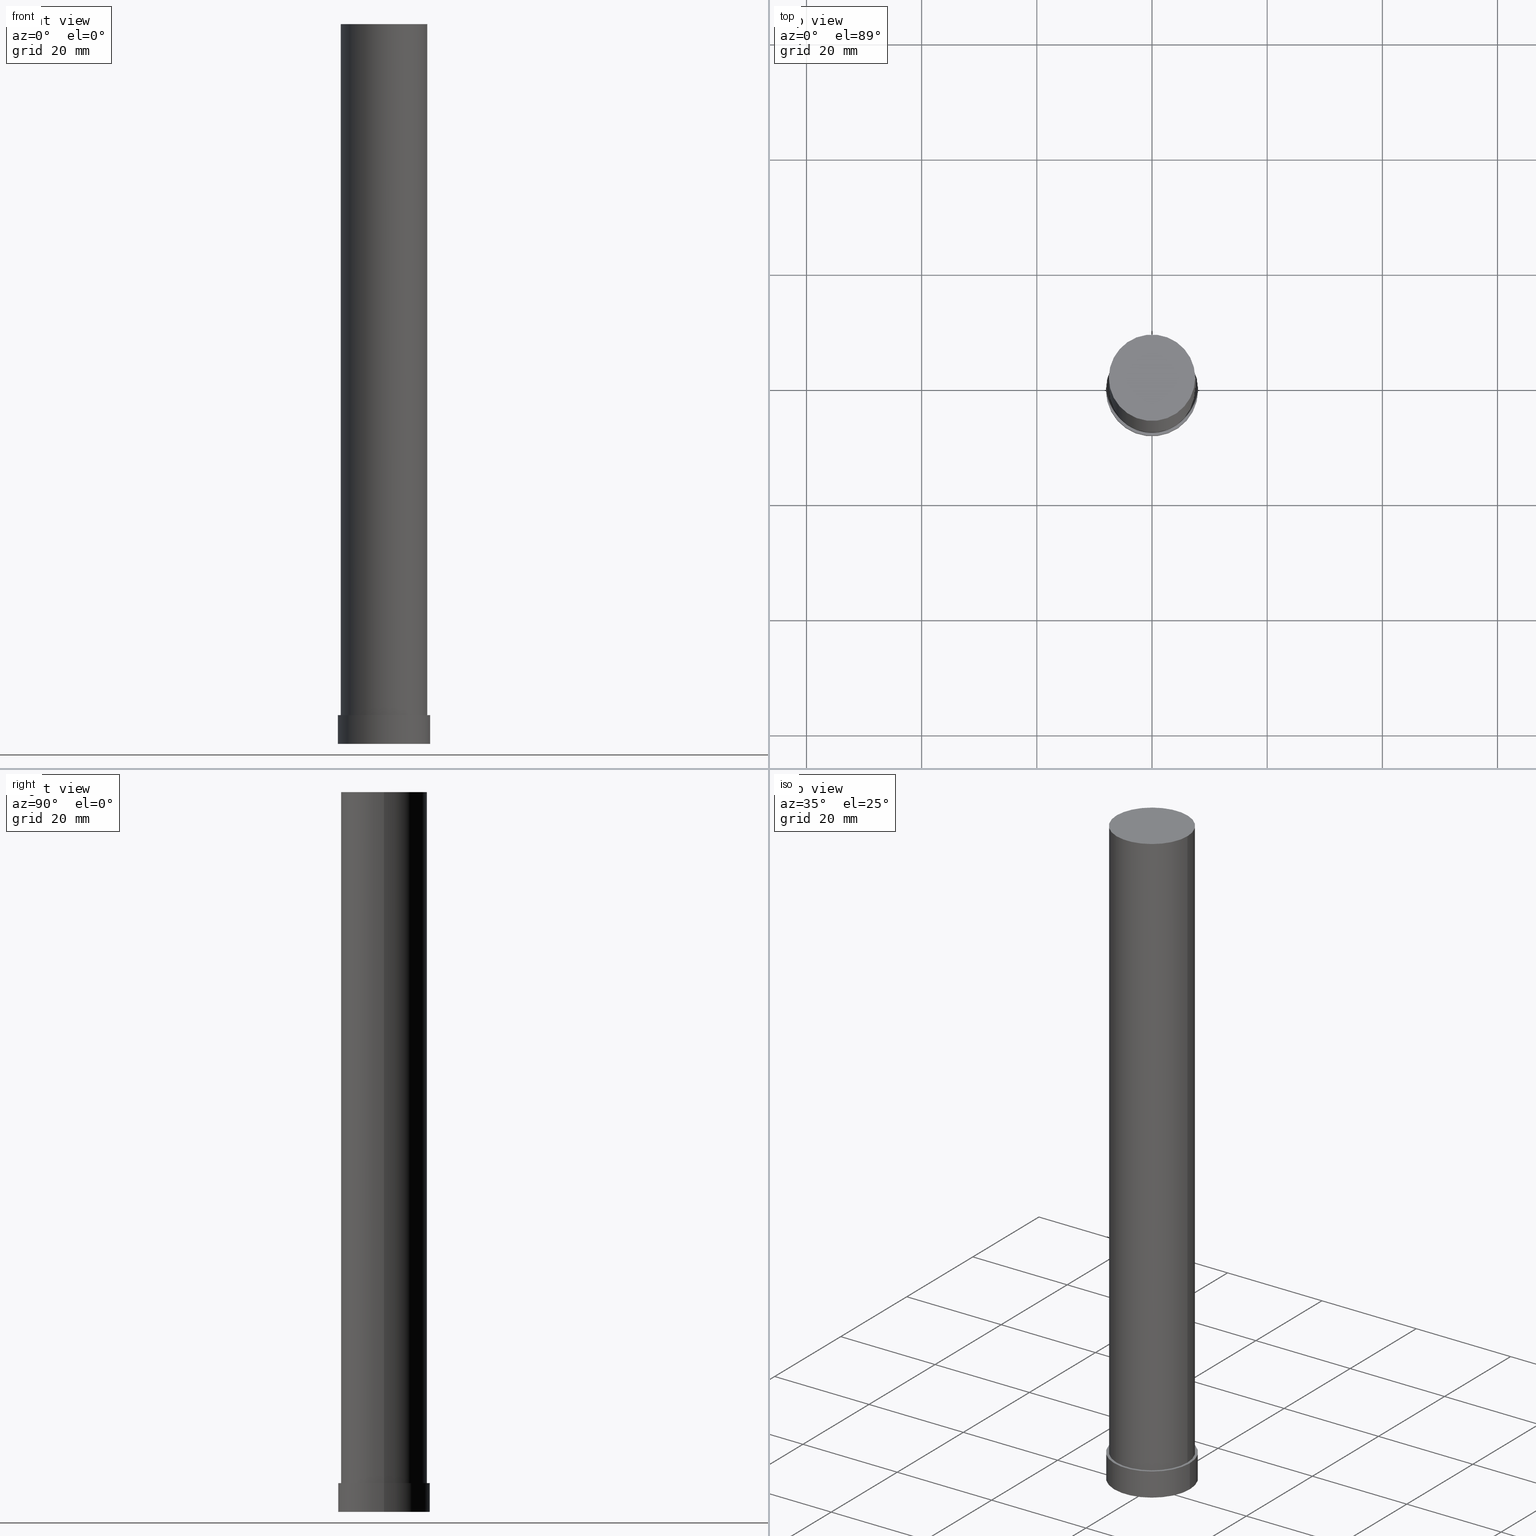
[diagram: canonical four-view strip — front | top / right | iso, engineering-drawing reading convention]
A machine part, canonical four-view strip (front | top / right | iso — engineering-drawing reading convention). The complete STEP part file that produces these views, byte-faithful:
ISO-10303-21;
HEADER;
FILE_DESCRIPTION (( 'STEP AP203' ),
    '1' );
FILE_NAME ('7818.STEP',
    '2023-10-18T15:07:00',
    ( '' ),
    ( '' ),
    'SwSTEP 2.0',
    'SolidWorks 2019',
    '' );
FILE_SCHEMA (( 'CONFIG_CONTROL_DESIGN' ));
ENDSEC;

DATA;
#1 = COORDINATED_UNIVERSAL_TIME_OFFSET ( 1, 0, .AHEAD. ) ;
#2 = CYLINDRICAL_SURFACE ( 'NONE', #224, 8.000000000000000000 ) ;
#3 = CARTESIAN_POINT ( 'NONE',  ( -8.000000000000000000, 0.000000000000000000, 5.000000000000000000 ) ) ;
#4 = CYLINDRICAL_SURFACE ( 'NONE', #17, 8.000000000000000000 ) ;
#5 = ORIENTED_EDGE ( 'NONE', *, *, #146, .T. ) ;
#6 = CIRCLE ( 'NONE', #92, 8.000000000000000000 ) ;
#7 = EDGE_CURVE ( 'NONE', #100, #204, #225, .T. ) ;
#8 = ORIENTED_EDGE ( 'NONE', *, *, #167, .F. ) ;
#9 = PLANE ( 'NONE',  #251 ) ;
#10 = CARTESIAN_POINT ( 'NONE',  ( 0.000000000000000000, 0.000000000000000000, 125.0000000000000000 ) ) ;
#11 = AXIS2_PLACEMENT_3D ( 'NONE', #174, #132, #13 ) ;
#12 = APPROVAL ( #134, 'NEUR�EN�' ) ;
#13 = DIRECTION ( 'NONE',  ( 1.000000000000000000, 0.000000000000000000, 0.000000000000000000 ) ) ;
#14 = DATE_AND_TIME ( #198, #158 ) ;
#15 = MECHANICAL_CONTEXT ( 'NONE', #27, 'mechanical' ) ;
#16 = DIRECTION ( 'NONE',  ( 1.000000000000000000, 0.000000000000000000, 0.000000000000000000 ) ) ;
#17 = AXIS2_PLACEMENT_3D ( 'NONE', #153, #151, #44 ) ;
#18 = PLANE ( 'NONE',  #135 ) ;
#19 = DIRECTION ( 'NONE',  ( -0.000000000000000000, -0.000000000000000000, -1.000000000000000000 ) ) ;
#20 = ORIENTED_EDGE ( 'NONE', *, *, #38, .F. ) ;
#21 = DIRECTION ( 'NONE',  ( -0.000000000000000000, -0.000000000000000000, -1.000000000000000000 ) ) ;
#22 = LOCAL_TIME ( 17, 7, 0.000000000000000000, #216 ) ;
#23 = DIRECTION ( 'NONE',  ( -0.000000000000000000, -0.000000000000000000, -1.000000000000000000 ) ) ;
#24 = PERSON ( 'NEUR�EN�', 'NEUR�EN�', 'NEUR�EN�', ('NEUR�EN�'), ('NEUR�EN�'), ('NEUR�EN�') ) ;
#25 = DIRECTION ( 'NONE',  ( -0.000000000000000000, -0.000000000000000000, -1.000000000000000000 ) ) ;
#26 = CC_DESIGN_SECURITY_CLASSIFICATION ( #73, ( #84 ) ) ;
#27 = APPLICATION_CONTEXT ( 'configuration controlled 3d designs of mechanical parts and assemblies' ) ;
#28 = CARTESIAN_POINT ( 'NONE',  ( 0.000000000000000000, 0.000000000000000000, 5.000000000000000000 ) ) ;
#29 = DATE_TIME_ROLE ( 'creation_date' ) ;
#30 = CC_DESIGN_APPROVAL ( #159, ( #73 ) ) ;
#31 = APPROVAL_ROLE ( '' ) ;
#32 = APPROVAL_DATE_TIME ( #175, #159 ) ;
#33 = EDGE_CURVE ( 'NONE', #204, #238, #244, .T. ) ;
#34 = VECTOR ( 'NONE', #85, 1000.000000000000000 ) ;
#35 = PRODUCT ( '7818', '7818', '', ( #15 ) ) ;
#36 = ORIENTED_EDGE ( 'NONE', *, *, #167, .T. ) ;
#37 = APPLICATION_CONTEXT ( 'configuration controlled 3d designs of mechanical parts and assemblies' ) ;
#38 = EDGE_CURVE ( 'NONE', #97, #145, #6, .T. ) ;
#39 = DIRECTION ( 'NONE',  ( -0.000000000000000000, -0.000000000000000000, -1.000000000000000000 ) ) ;
#40 = AXIS2_PLACEMENT_3D ( 'NONE', #121, #203, #16 ) ;
#41 = DIRECTION ( 'NONE',  ( 0.000000000000000000, 0.000000000000000000, 1.000000000000000000 ) ) ;
#42 = DIRECTION ( 'NONE',  ( -1.000000000000000000, 0.000000000000000000, 0.000000000000000000 ) ) ;
#43 = EDGE_LOOP ( 'NONE', ( #106, #202 ) ) ;
#44 = DIRECTION ( 'NONE',  ( -1.000000000000000000, 0.000000000000000000, 0.000000000000000000 ) ) ;
#45 = DIRECTION ( 'NONE',  ( 0.000000000000000000, 0.000000000000000000, 1.000000000000000000 ) ) ;
#46 = CARTESIAN_POINT ( 'NONE',  ( 8.000000000000000000, 9.797174393178825657E-16, 0.000000000000000000 ) ) ;
#47 = VECTOR ( 'NONE', #58, 1000.000000000000000 ) ;
#48 = FACE_OUTER_BOUND ( 'NONE', #142, .T. ) ;
#49 = CC_DESIGN_PERSON_AND_ORGANIZATION_ASSIGNMENT ( #51, #214, ( #35 ) ) ;
#50 = PERSON_AND_ORGANIZATION_ROLE ( 'creator' ) ;
#51 = PERSON_AND_ORGANIZATION ( #24, #178 ) ;
#52 = APPROVAL_PERSON_ORGANIZATION ( #137, #12, #138 ) ;
#53 = PRODUCT_DEFINITION_SHAPE ( 'NONE', 'NONE',  #57 ) ;
#54 = COORDINATED_UNIVERSAL_TIME_OFFSET ( 1, 0, .AHEAD. ) ;
#55 = PERSON_AND_ORGANIZATION_ROLE ( 'creator' ) ;
#56 = ADVANCED_FACE ( 'NONE', ( #207 ), #2, .T. ) ;
#57 = PRODUCT_DEFINITION ( 'NEZN�M�', '', #84, #99 ) ;
#58 = DIRECTION ( 'NONE',  ( -0.000000000000000000, -0.000000000000000000, -1.000000000000000000 ) ) ;
#59 = EDGE_LOOP ( 'NONE', ( #60, #228 ) ) ;
#60 = ORIENTED_EDGE ( 'NONE', *, *, #33, .F. ) ;
#61 = FACE_OUTER_BOUND ( 'NONE', #242, .T. ) ;
#62 = ORIENTED_EDGE ( 'NONE', *, *, #182, .F. ) ;
#63 = AXIS2_PLACEMENT_3D ( 'NONE', #205, #19, #103 ) ;
#64 = DIRECTION ( 'NONE',  ( 0.000000000000000000, 0.000000000000000000, 1.000000000000000000 ) ) ;
#65 = ADVANCED_BREP_SHAPE_REPRESENTATION ( '7818', ( #164, #11 ), #101 ) ;
#66 = PRODUCT_RELATED_PRODUCT_CATEGORY ( 'detail', '', ( #35 ) ) ;
#67 =( NAMED_UNIT ( * ) SI_UNIT ( $, .STERADIAN. ) SOLID_ANGLE_UNIT ( ) );
#68 = DIRECTION ( 'NONE',  ( 1.000000000000000000, 0.000000000000000000, 0.000000000000000000 ) ) ;
#69 = EDGE_CURVE ( 'NONE', #76, #97, #169, .T. ) ;
#70 = CARTESIAN_POINT ( 'NONE',  ( 0.000000000000000000, 0.000000000000000000, 5.000000000000000000 ) ) ;
#71 = DATE_AND_TIME ( #98, #187 ) ;
#72 = APPROVAL_ROLE ( '' ) ;
#73 = SECURITY_CLASSIFICATION ( '', '', #253 ) ;
#74 = DATE_AND_TIME ( #180, #22 ) ;
#75 = COORDINATED_UNIVERSAL_TIME_OFFSET ( 1, 0, .AHEAD. ) ;
#76 = VERTEX_POINT ( 'NONE', #3 ) ;
#77 = CALENDAR_DATE ( 2023, 18, 10 ) ;
#78 = ORIENTED_EDGE ( 'NONE', *, *, #182, .T. ) ;
#79 = APPROVAL_PERSON_ORGANIZATION ( #94, #159, #72 ) ;
#80 = ORIENTED_EDGE ( 'NONE', *, *, #116, .F. ) ;
#81 = DIRECTION ( 'NONE',  ( 1.000000000000000000, 0.000000000000000000, -0.000000000000000000 ) ) ;
#82 = CARTESIAN_POINT ( 'NONE',  ( -7.500000000000000000, 0.000000000000000000, 125.0000000000000000 ) ) ;
#83 = APPROVAL ( #199, 'NEUR�EN�' ) ;
#84 = PRODUCT_DEFINITION_FORMATION_WITH_SPECIFIED_SOURCE ( 'LIBOVOLN�', '', #35, .NOT_KNOWN. ) ;
#85 = DIRECTION ( 'NONE',  ( -0.000000000000000000, -0.000000000000000000, -1.000000000000000000 ) ) ;
#86 = EDGE_LOOP ( 'NONE', ( #105, #144, #186, #122 ) ) ;
#87 = CARTESIAN_POINT ( 'NONE',  ( 0.000000000000000000, 0.000000000000000000, 0.000000000000000000 ) ) ;
#88 = EDGE_CURVE ( 'NONE', #160, #145, #125, .T. ) ;
#89 = CLOSED_SHELL ( 'NONE', ( #118, #112, #56, #131, #104, #107, #155 ) ) ;
#90 = CARTESIAN_POINT ( 'NONE',  ( 7.500000000000000000, 9.184850993605147944E-16, 125.0000000000000000 ) ) ;
#91 = DIRECTION ( 'NONE',  ( 1.000000000000000000, 0.000000000000000000, 0.000000000000000000 ) ) ;
#92 = AXIS2_PLACEMENT_3D ( 'NONE', #189, #41, #168 ) ;
#93 = PERSON_AND_ORGANIZATION_ROLE ( 'design_supplier' ) ;
#94 = PERSON_AND_ORGANIZATION ( #24, #178 ) ;
#95 = CC_DESIGN_PERSON_AND_ORGANIZATION_ASSIGNMENT ( #96, #93, ( #84 ) ) ;
#96 = PERSON_AND_ORGANIZATION ( #24, #178 ) ;
#97 = VERTEX_POINT ( 'NONE', #245 ) ;
#98 = CALENDAR_DATE ( 2023, 18, 10 ) ;
#99 = DESIGN_CONTEXT ( 'detailed design', #37, 'design' ) ;
#100 = VERTEX_POINT ( 'NONE', #82 ) ;
#101 =( GEOMETRIC_REPRESENTATION_CONTEXT ( 3 ) GLOBAL_UNCERTAINTY_ASSIGNED_CONTEXT ( ( #201 ) ) GLOBAL_UNIT_ASSIGNED_CONTEXT ( ( #171, #130, #67 ) ) REPRESENTATION_CONTEXT ( 'NONE', 'WORKASPACE' ) );
#102 = ORIENTED_EDGE ( 'NONE', *, *, #188, .F. ) ;
#103 = DIRECTION ( 'NONE',  ( -1.000000000000000000, 0.000000000000000000, 0.000000000000000000 ) ) ;
#104 = ADVANCED_FACE ( 'NONE', ( #61 ), #18, .F. ) ;
#105 = ORIENTED_EDGE ( 'NONE', *, *, #146, .F. ) ;
#106 = ORIENTED_EDGE ( 'NONE', *, *, #141, .T. ) ;
#107 = ADVANCED_FACE ( 'NONE', ( #163 ), #124, .T. ) ;
#108 = DIRECTION ( 'NONE',  ( 1.000000000000000000, 0.000000000000000000, 0.000000000000000000 ) ) ;
#109 = DIRECTION ( 'NONE',  ( 0.000000000000000000, 0.000000000000000000, 1.000000000000000000 ) ) ;
#110 = AXIS2_PLACEMENT_3D ( 'NONE', #28, #195, #127 ) ;
#111 = DIRECTION ( 'NONE',  ( 1.000000000000000000, 0.000000000000000000, -0.000000000000000000 ) ) ;
#112 = ADVANCED_FACE ( 'NONE', ( #185 ), #4, .T. ) ;
#113 = PERSON_AND_ORGANIZATION ( #24, #178 ) ;
#114 = CIRCLE ( 'NONE', #110, 7.500000000000000000 ) ;
#115 = PERSON_AND_ORGANIZATION ( #24, #178 ) ;
#116 = EDGE_CURVE ( 'NONE', #145, #97, #152, .T. ) ;
#117 = LOCAL_TIME ( 17, 7, 0.000000000000000000, #75 ) ;
#118 = ADVANCED_FACE ( 'NONE', ( #48 ), #209, .T. ) ;
#119 = PERSON_AND_ORGANIZATION ( #24, #178 ) ;
#120 = ORIENTED_EDGE ( 'NONE', *, *, #69, .F. ) ;
#121 = CARTESIAN_POINT ( 'NONE',  ( 0.000000000000000000, 0.000000000000000000, 5.000000000000000000 ) ) ;
#122 = ORIENTED_EDGE ( 'NONE', *, *, #33, .T. ) ;
#123 = VECTOR ( 'NONE', #23, 1000.000000000000000 ) ;
#124 = CYLINDRICAL_SURFACE ( 'NONE', #63, 7.500000000000000000 ) ;
#125 = LINE ( 'NONE', #140, #196 ) ;
#126 = EDGE_LOOP ( 'NONE', ( #78, #36 ) ) ;
#127 = DIRECTION ( 'NONE',  ( 1.000000000000000000, 0.000000000000000000, 0.000000000000000000 ) ) ;
#128 = DIRECTION ( 'NONE',  ( 0.000000000000000000, 0.000000000000000000, 1.000000000000000000 ) ) ;
#129 = PLANE ( 'NONE',  #219 ) ;
#130 =( NAMED_UNIT ( * ) PLANE_ANGLE_UNIT ( ) SI_UNIT ( $, .RADIAN. ) );
#131 = ADVANCED_FACE ( 'NONE', ( #149, #208 ), #129, .T. ) ;
#132 = DIRECTION ( 'NONE',  ( 0.000000000000000000, 0.000000000000000000, 1.000000000000000000 ) ) ;
#133 = EDGE_CURVE ( 'NONE', #238, #204, #114, .T. ) ;
#134 = APPROVAL_STATUS ( 'not_yet_approved' ) ;
#135 = AXIS2_PLACEMENT_3D ( 'NONE', #184, #246, #81 ) ;
#136 = PERSON_AND_ORGANIZATION ( #24, #178 ) ;
#137 = PERSON_AND_ORGANIZATION ( #24, #178 ) ;
#138 = APPROVAL_ROLE ( '' ) ;
#139 = CC_DESIGN_APPROVAL ( #12, ( #57 ) ) ;
#140 = CARTESIAN_POINT ( 'NONE',  ( 8.000000000000000000, 9.797174393178825657E-16, 5.000000000000000000 ) ) ;
#141 = EDGE_CURVE ( 'NONE', #100, #206, #211, .T. ) ;
#142 = EDGE_LOOP ( 'NONE', ( #102, #5, #161, #223 ) ) ;
#143 = CIRCLE ( 'NONE', #215, 8.000000000000000000 ) ;
#144 = ORIENTED_EDGE ( 'NONE', *, *, #141, .F. ) ;
#145 = VERTEX_POINT ( 'NONE', #46 ) ;
#146 = EDGE_CURVE ( 'NONE', #206, #238, #231, .T. ) ;
#147 = EDGE_LOOP ( 'NONE', ( #243, #62, #165, #240 ) ) ;
#148 = LOCAL_TIME ( 17, 7, 0.000000000000000000, #157 ) ;
#149 = FACE_BOUND ( 'NONE', #59, .T. ) ;
#150 = CARTESIAN_POINT ( 'NONE',  ( 7.500000000000000000, 9.184850993605147944E-16, 5.000000000000000000 ) ) ;
#151 = DIRECTION ( 'NONE',  ( -0.000000000000000000, -0.000000000000000000, -1.000000000000000000 ) ) ;
#152 = CIRCLE ( 'NONE', #236, 8.000000000000000000 ) ;
#153 = CARTESIAN_POINT ( 'NONE',  ( 0.000000000000000000, 0.000000000000000000, 5.000000000000000000 ) ) ;
#154 = CARTESIAN_POINT ( 'NONE',  ( 7.500000000000000000, 9.184850993605147944E-16, 125.0000000000000000 ) ) ;
#155 = ADVANCED_FACE ( 'NONE', ( #190 ), #9, .T. ) ;
#156 = PERSON_AND_ORGANIZATION_ROLE ( 'classification_officer' ) ;
#157 = COORDINATED_UNIVERSAL_TIME_OFFSET ( 1, 0, .AHEAD. ) ;
#158 = LOCAL_TIME ( 17, 7, 0.000000000000000000, #1 ) ;
#159 = APPROVAL ( #254, 'NEUR�EN�' ) ;
#160 = VERTEX_POINT ( 'NONE', #230 ) ;
#161 = ORIENTED_EDGE ( 'NONE', *, *, #133, .T. ) ;
#162 = CARTESIAN_POINT ( 'NONE',  ( 0.000000000000000000, 0.000000000000000000, 5.000000000000000000 ) ) ;
#163 = FACE_OUTER_BOUND ( 'NONE', #86, .T. ) ;
#164 = MANIFOLD_SOLID_BREP ( 'P�idat vysunut�m3', #89 ) ;
#165 = ORIENTED_EDGE ( 'NONE', *, *, #69, .T. ) ;
#166 = AXIS2_PLACEMENT_3D ( 'NONE', #212, #250, #68 ) ;
#167 = EDGE_CURVE ( 'NONE', #160, #76, #255, .T. ) ;
#168 = DIRECTION ( 'NONE',  ( 1.000000000000000000, 0.000000000000000000, 0.000000000000000000 ) ) ;
#169 = LINE ( 'NONE', #241, #47 ) ;
#170 = CARTESIAN_POINT ( 'NONE',  ( 0.000000000000000000, 0.000000000000000000, 125.0000000000000000 ) ) ;
#171 =( LENGTH_UNIT ( ) NAMED_UNIT ( * ) SI_UNIT ( .MILLI., .METRE. ) );
#172 = DIRECTION ( 'NONE',  ( 1.000000000000000000, 0.000000000000000000, -0.000000000000000000 ) ) ;
#173 = APPLICATION_PROTOCOL_DEFINITION ( 'international standard', 'config_control_design', 1994, #27 ) ;
#174 = CARTESIAN_POINT ( 'NONE',  ( 0.000000000000000000, 0.000000000000000000, 0.000000000000000000 ) ) ;
#175 = DATE_AND_TIME ( #217, #148 ) ;
#176 = APPROVAL_DATE_TIME ( #74, #12 ) ;
#177 = DATE_TIME_ROLE ( 'classification_date' ) ;
#178 = ORGANIZATION ( 'NEUR�EN�', 'NEUR�EN�', '' ) ;
#179 = CC_DESIGN_DATE_AND_TIME_ASSIGNMENT ( #235, #177, ( #73 ) ) ;
#180 = CALENDAR_DATE ( 2023, 18, 10 ) ;
#181 = CARTESIAN_POINT ( 'NONE',  ( -7.500000000000000000, 0.000000000000000000, 125.0000000000000000 ) ) ;
#182 = EDGE_CURVE ( 'NONE', #76, #160, #143, .T. ) ;
#183 = AXIS2_PLACEMENT_3D ( 'NONE', #10, #128, #191 ) ;
#184 = CARTESIAN_POINT ( 'NONE',  ( 0.000000000000000000, 0.000000000000000000, 0.000000000000000000 ) ) ;
#185 = FACE_OUTER_BOUND ( 'NONE', #220, .T. ) ;
#186 = ORIENTED_EDGE ( 'NONE', *, *, #7, .T. ) ;
#187 = LOCAL_TIME ( 17, 7, 0.000000000000000000, #54 ) ;
#188 = EDGE_CURVE ( 'NONE', #206, #100, #248, .T. ) ;
#189 = CARTESIAN_POINT ( 'NONE',  ( 0.000000000000000000, 0.000000000000000000, 0.000000000000000000 ) ) ;
#190 = FACE_OUTER_BOUND ( 'NONE', #43, .T. ) ;
#191 = DIRECTION ( 'NONE',  ( 1.000000000000000000, 0.000000000000000000, 0.000000000000000000 ) ) ;
#192 = CC_DESIGN_APPROVAL ( #83, ( #84 ) ) ;
#193 = CARTESIAN_POINT ( 'NONE',  ( -7.500000000000000000, 0.000000000000000000, 5.000000000000000000 ) ) ;
#194 = CC_DESIGN_DATE_AND_TIME_ASSIGNMENT ( #71, #29, ( #57 ) ) ;
#195 = DIRECTION ( 'NONE',  ( 0.000000000000000000, 0.000000000000000000, 1.000000000000000000 ) ) ;
#196 = VECTOR ( 'NONE', #39, 1000.000000000000000 ) ;
#197 = APPROVAL_DATE_TIME ( #14, #83 ) ;
#198 = CALENDAR_DATE ( 2023, 18, 10 ) ;
#199 = APPROVAL_STATUS ( 'not_yet_approved' ) ;
#200 = AXIS2_PLACEMENT_3D ( 'NONE', #229, #45, #91 ) ;
#201 = UNCERTAINTY_MEASURE_WITH_UNIT (LENGTH_MEASURE( 1.000000000000000082E-05 ), #171, 'distance_accuracy_value', 'NONE');
#202 = ORIENTED_EDGE ( 'NONE', *, *, #188, .T. ) ;
#203 = DIRECTION ( 'NONE',  ( 0.000000000000000000, 0.000000000000000000, 1.000000000000000000 ) ) ;
#204 = VERTEX_POINT ( 'NONE', #193 ) ;
#205 = CARTESIAN_POINT ( 'NONE',  ( 0.000000000000000000, 0.000000000000000000, 125.0000000000000000 ) ) ;
#206 = VERTEX_POINT ( 'NONE', #90 ) ;
#207 = FACE_OUTER_BOUND ( 'NONE', #147, .T. ) ;
#208 = FACE_OUTER_BOUND ( 'NONE', #126, .T. ) ;
#209 = CYLINDRICAL_SURFACE ( 'NONE', #239, 7.500000000000000000 ) ;
#210 = DIRECTION ( 'NONE',  ( 1.000000000000000000, 0.000000000000000000, 0.000000000000000000 ) ) ;
#211 = CIRCLE ( 'NONE', #166, 7.500000000000000000 ) ;
#212 = CARTESIAN_POINT ( 'NONE',  ( 0.000000000000000000, 0.000000000000000000, 125.0000000000000000 ) ) ;
#213 = CARTESIAN_POINT ( 'NONE',  ( 0.000000000000000000, 0.000000000000000000, 125.0000000000000000 ) ) ;
#214 = PERSON_AND_ORGANIZATION_ROLE ( 'design_owner' ) ;
#215 = AXIS2_PLACEMENT_3D ( 'NONE', #233, #249, #210 ) ;
#216 = COORDINATED_UNIVERSAL_TIME_OFFSET ( 1, 0, .AHEAD. ) ;
#217 = CALENDAR_DATE ( 2023, 18, 10 ) ;
#218 = SHAPE_DEFINITION_REPRESENTATION ( #53, #65 ) ;
#219 = AXIS2_PLACEMENT_3D ( 'NONE', #70, #109, #172 ) ;
#220 = EDGE_LOOP ( 'NONE', ( #8, #227, #222, #120 ) ) ;
#221 = CC_DESIGN_PERSON_AND_ORGANIZATION_ASSIGNMENT ( #113, #156, ( #73 ) ) ;
#222 = ORIENTED_EDGE ( 'NONE', *, *, #116, .T. ) ;
#223 = ORIENTED_EDGE ( 'NONE', *, *, #7, .F. ) ;
#224 = AXIS2_PLACEMENT_3D ( 'NONE', #162, #21, #42 ) ;
#225 = LINE ( 'NONE', #181, #34 ) ;
#226 = CC_DESIGN_PERSON_AND_ORGANIZATION_ASSIGNMENT ( #115, #50, ( #57 ) ) ;
#227 = ORIENTED_EDGE ( 'NONE', *, *, #88, .T. ) ;
#228 = ORIENTED_EDGE ( 'NONE', *, *, #133, .F. ) ;
#229 = CARTESIAN_POINT ( 'NONE',  ( 0.000000000000000000, 0.000000000000000000, 5.000000000000000000 ) ) ;
#230 = CARTESIAN_POINT ( 'NONE',  ( 8.000000000000000000, 9.797174393178825657E-16, 5.000000000000000000 ) ) ;
#231 = LINE ( 'NONE', #154, #123 ) ;
#232 = APPROVAL_PERSON_ORGANIZATION ( #119, #83, #31 ) ;
#233 = CARTESIAN_POINT ( 'NONE',  ( 0.000000000000000000, 0.000000000000000000, 5.000000000000000000 ) ) ;
#234 = CC_DESIGN_PERSON_AND_ORGANIZATION_ASSIGNMENT ( #136, #55, ( #84 ) ) ;
#235 = DATE_AND_TIME ( #77, #117 ) ;
#236 = AXIS2_PLACEMENT_3D ( 'NONE', #87, #64, #108 ) ;
#237 = APPLICATION_PROTOCOL_DEFINITION ( 'international standard', 'config_control_design', 1994, #37 ) ;
#238 = VERTEX_POINT ( 'NONE', #150 ) ;
#239 = AXIS2_PLACEMENT_3D ( 'NONE', #213, #25, #252 ) ;
#240 = ORIENTED_EDGE ( 'NONE', *, *, #38, .T. ) ;
#241 = CARTESIAN_POINT ( 'NONE',  ( -8.000000000000000000, 0.000000000000000000, 5.000000000000000000 ) ) ;
#242 = EDGE_LOOP ( 'NONE', ( #20, #80 ) ) ;
#243 = ORIENTED_EDGE ( 'NONE', *, *, #88, .F. ) ;
#244 = CIRCLE ( 'NONE', #40, 7.500000000000000000 ) ;
#245 = CARTESIAN_POINT ( 'NONE',  ( -8.000000000000000000, 0.000000000000000000, 0.000000000000000000 ) ) ;
#246 = DIRECTION ( 'NONE',  ( 0.000000000000000000, 0.000000000000000000, 1.000000000000000000 ) ) ;
#247 = DIRECTION ( 'NONE',  ( 0.000000000000000000, 0.000000000000000000, 1.000000000000000000 ) ) ;
#248 = CIRCLE ( 'NONE', #183, 7.500000000000000000 ) ;
#249 = DIRECTION ( 'NONE',  ( 0.000000000000000000, 0.000000000000000000, 1.000000000000000000 ) ) ;
#250 = DIRECTION ( 'NONE',  ( 0.000000000000000000, 0.000000000000000000, 1.000000000000000000 ) ) ;
#251 = AXIS2_PLACEMENT_3D ( 'NONE', #170, #247, #111 ) ;
#252 = DIRECTION ( 'NONE',  ( -1.000000000000000000, 0.000000000000000000, 0.000000000000000000 ) ) ;
#253 = SECURITY_CLASSIFICATION_LEVEL ( 'unclassified' ) ;
#254 = APPROVAL_STATUS ( 'not_yet_approved' ) ;
#255 = CIRCLE ( 'NONE', #200, 8.000000000000000000 ) ;
ENDSEC;
END-ISO-10303-21;
